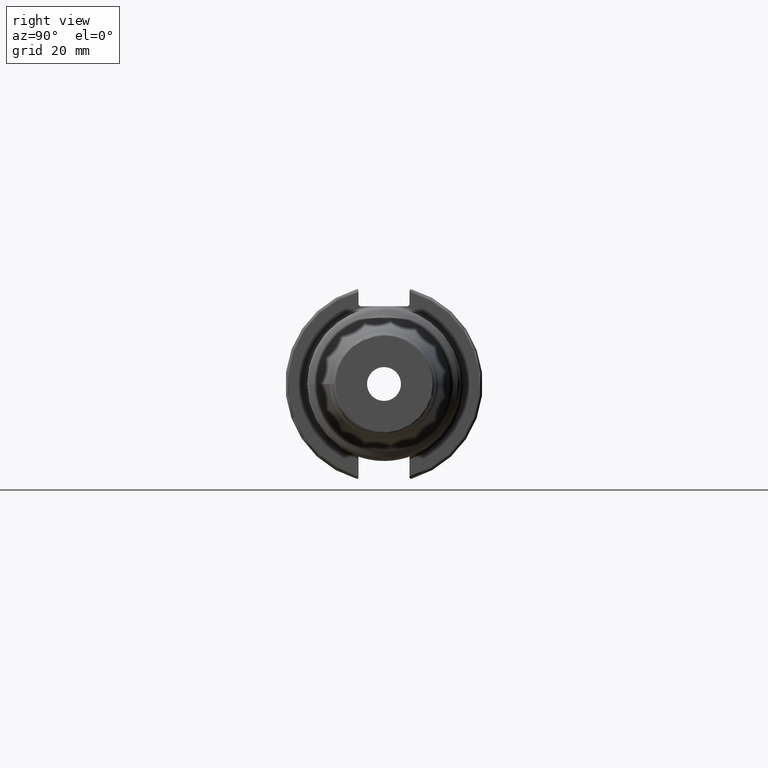
[diagram: clean part render]
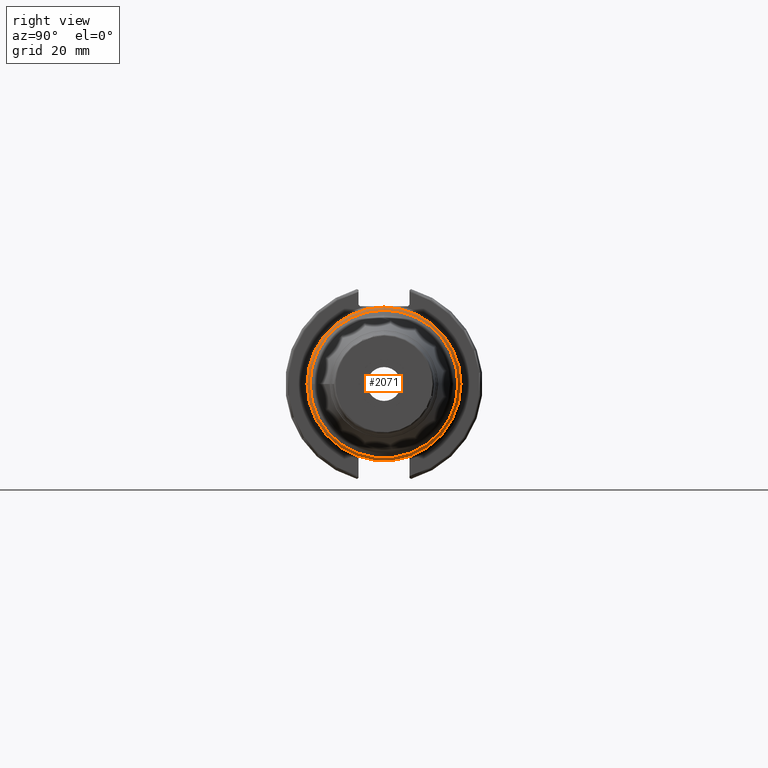
[diagram: same view with one face highlighted and labeled with its STEP entity id]
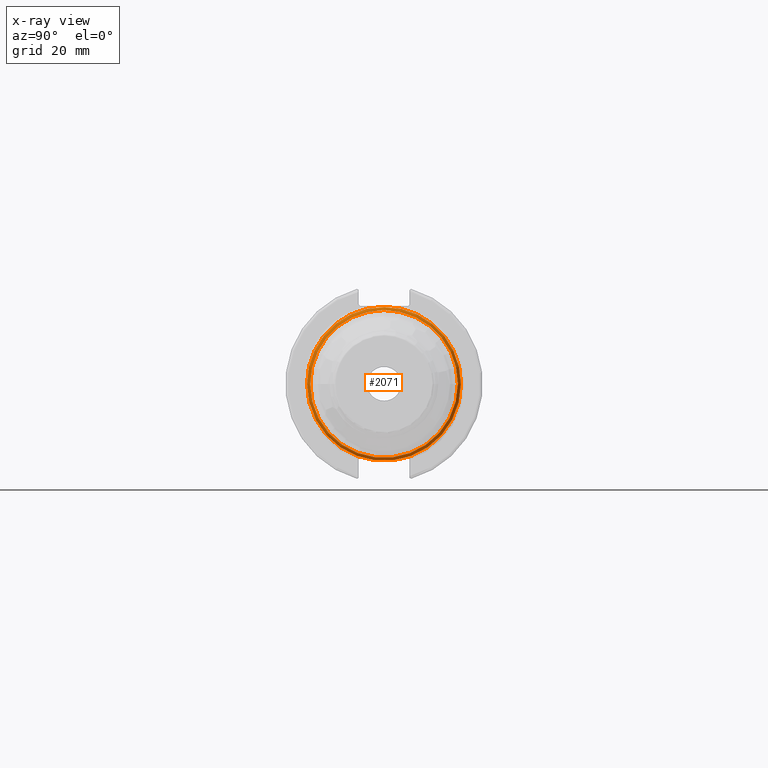
[diagram: x-ray of the same camera — body ghosted, the highlighted face saturated]
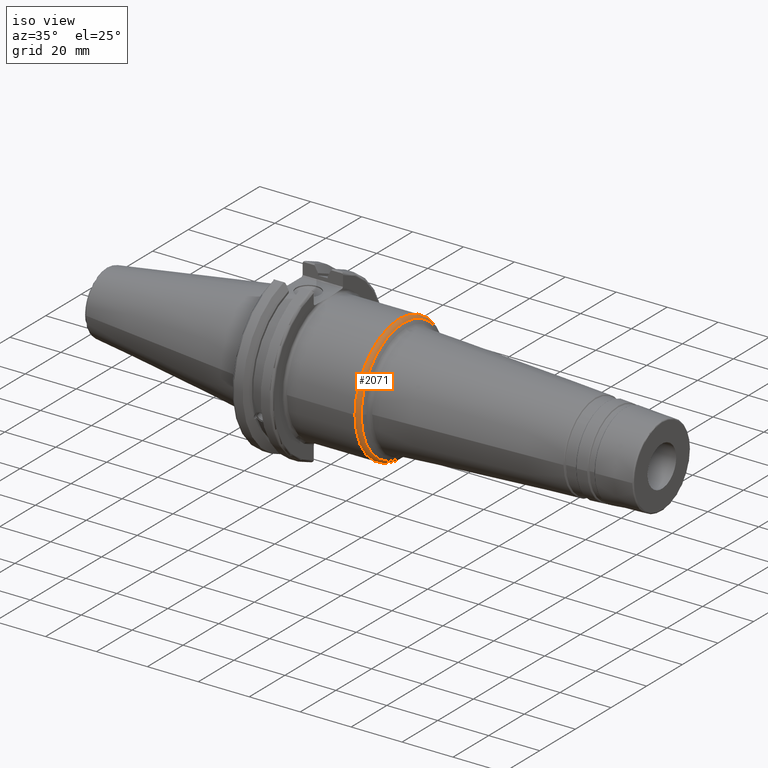
[diagram: same view with one face highlighted and labeled with its STEP entity id]
A machine part, right view. The second image highlights one B-rep face of the part: STEP entity #2071.
The next image is the same camera in x-ray: the body ghosted, the highlighted face saturated — about 0% of this face is hidden behind the body in this view.
A second angle (iso view) of the same face is appended — the face is thin or edge-on in the first view.
In plain terms, the highlighted toroidal blend (fillet) surface has major radius 22.75 mm and minor (blend) radius 2 mm.
Its self-contained STEP definition (entity closure, byte-faithful):
#86=TOROIDAL_SURFACE('',#2223,22.75,2.);
#190=FACE_OUTER_BOUND('',#298,.T.);
#298=EDGE_LOOP('',(#1418,#1419,#1420,#1421,#1422,#1423,#1424,#1425));
#615=CIRCLE('',#2202,24.75);
#616=CIRCLE('',#2203,24.75);
#619=CIRCLE('',#2206,24.75);
#627=CIRCLE('',#2216,23.75);
#628=CIRCLE('',#2217,23.75);
#629=CIRCLE('',#2218,23.75);
#633=CIRCLE('',#2224,2.);
#795=VERTEX_POINT('',#3305);
#796=VERTEX_POINT('',#3306);
#797=VERTEX_POINT('',#3308);
#805=VERTEX_POINT('',#3330);
#806=VERTEX_POINT('',#3332);
#807=VERTEX_POINT('',#3334);
#1039=EDGE_CURVE('',#795,#796,#615,.T.);
#1040=EDGE_CURVE('',#797,#795,#616,.T.);
#1044=EDGE_CURVE('',#796,#797,#619,.T.);
#1053=EDGE_CURVE('',#806,#805,#627,.T.);
#1054=EDGE_CURVE('',#807,#806,#628,.T.);
#1055=EDGE_CURVE('',#805,#807,#629,.T.);
#1060=EDGE_CURVE('',#807,#796,#633,.T.);
#1418=ORIENTED_EDGE('',*,*,#1053,.T.);
#1419=ORIENTED_EDGE('',*,*,#1055,.T.);
#1420=ORIENTED_EDGE('',*,*,#1060,.T.);
#1421=ORIENTED_EDGE('',*,*,#1044,.T.);
#1422=ORIENTED_EDGE('',*,*,#1040,.T.);
#1423=ORIENTED_EDGE('',*,*,#1039,.T.);
#1424=ORIENTED_EDGE('',*,*,#1060,.F.);
#1425=ORIENTED_EDGE('',*,*,#1054,.T.);
#2071=ADVANCED_FACE('',(#190),#86,.T.);
#2202=AXIS2_PLACEMENT_3D('',#3307,#2519,#2520);
#2203=AXIS2_PLACEMENT_3D('',#3309,#2521,#2522);
#2206=AXIS2_PLACEMENT_3D('',#3314,#2528,#2529);
#2216=AXIS2_PLACEMENT_3D('',#3333,#2549,#2550);
#2217=AXIS2_PLACEMENT_3D('',#3335,#2551,#2552);
#2218=AXIS2_PLACEMENT_3D('',#3336,#2553,#2554);
#2223=AXIS2_PLACEMENT_3D('',#3345,#2564,#2565);
#2224=AXIS2_PLACEMENT_3D('',#3346,#2566,#2567);
#2519=DIRECTION('center_axis',(1.,0.,0.));
#2520=DIRECTION('ref_axis',(0.,-1.,1.83697019872103E-16));
#2521=DIRECTION('center_axis',(1.,0.,0.));
#2522=DIRECTION('ref_axis',(0.,-1.,1.83697019872103E-16));
#2528=DIRECTION('center_axis',(1.,0.,0.));
#2529=DIRECTION('ref_axis',(0.,-1.,1.83697019872103E-16));
#2549=DIRECTION('center_axis',(-1.,0.,0.));
#2550=DIRECTION('ref_axis',(0.,-1.,3.06161699786838E-17));
#2551=DIRECTION('center_axis',(-1.,0.,0.));
#2552=DIRECTION('ref_axis',(0.,-1.,3.06161699786838E-17));
#2553=DIRECTION('center_axis',(-1.,0.,0.));
#2554=DIRECTION('ref_axis',(0.,-1.,3.06161699786838E-17));
#2564=DIRECTION('center_axis',(1.,0.,0.));
#2565=DIRECTION('ref_axis',(0.,0.,-1.));
#2566=DIRECTION('center_axis',(0.,-1.,-1.22464679914735E-16));
#2567=DIRECTION('ref_axis',(0.,-1.22464679914735E-16,1.));
#3305=CARTESIAN_POINT('',(46.8192491538809,24.75,-1.51550041394485E-15));
#3306=CARTESIAN_POINT('',(46.8192491538809,-3.0310008278897E-15,24.75));
#3307=CARTESIAN_POINT('Origin',(46.8192491538809,0.,0.));
#3308=CARTESIAN_POINT('',(46.8192491538809,-24.75,-3.0310008278897E-15));
#3309=CARTESIAN_POINT('Origin',(46.8192491538809,0.,0.));
#3314=CARTESIAN_POINT('Origin',(46.8192491538809,0.,0.));
#3330=CARTESIAN_POINT('',(48.5512999614498,-23.75,-2.90853614797496E-15));
#3332=CARTESIAN_POINT('',(48.5512999614498,23.75,-7.27134036993741E-15));
#3333=CARTESIAN_POINT('Origin',(48.5512999614498,0.,-3.6356701849687E-15));
#3334=CARTESIAN_POINT('',(48.5512999614498,-2.90853614797496E-15,23.75));
#3335=CARTESIAN_POINT('Origin',(48.5512999614498,0.,-3.6356701849687E-15));
#3336=CARTESIAN_POINT('Origin',(48.5512999614498,0.,-3.6356701849687E-15));
#3345=CARTESIAN_POINT('Origin',(46.8192491538809,0.,0.));
#3346=CARTESIAN_POINT('Origin',(46.8192491538809,-2.78607146806023E-15,
22.75));